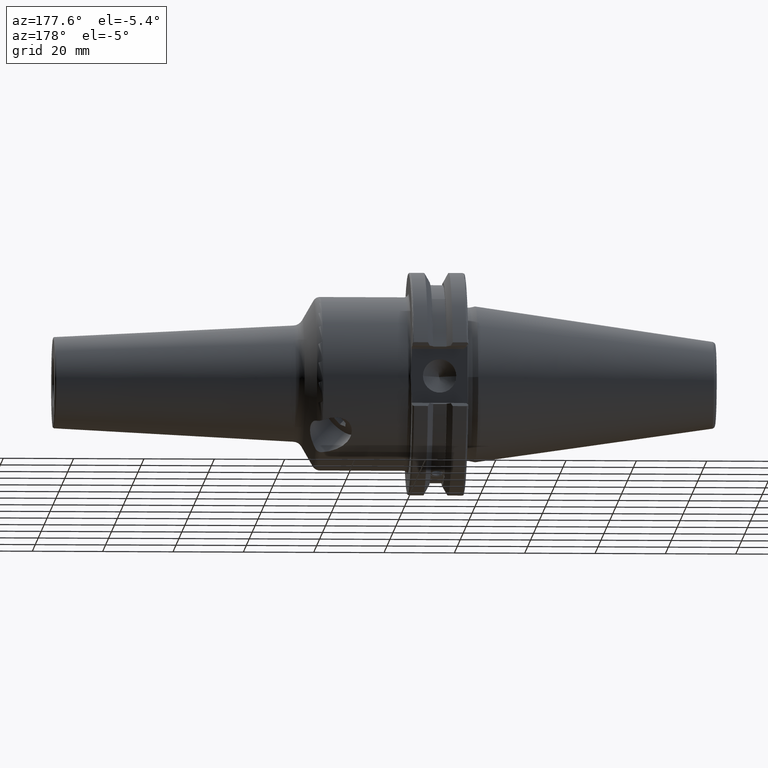
[diagram: clean part render]
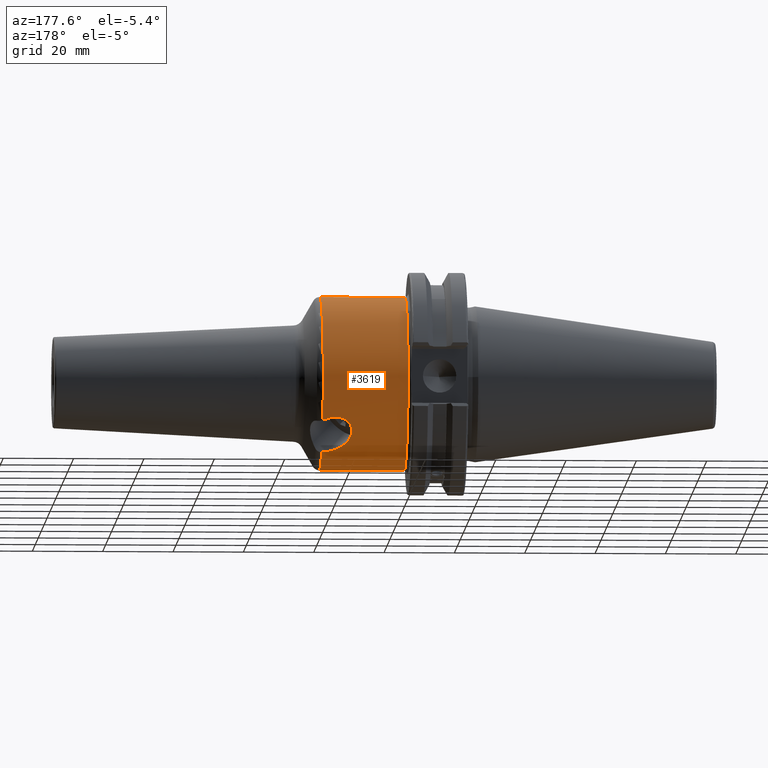
[diagram: same view with one face highlighted and labeled with its STEP entity id]
A machine part, auxiliary view. The second image highlights one B-rep face of the part: STEP entity #3619.
In plain terms, the highlighted cylindrical surface (partial cylindrical patch) has radius 24.75 mm, axis along (1, 0, 0).
Its self-contained STEP definition (entity closure, byte-faithful):
#1045=CARTESIAN_POINT('',(2.005E1,0.E0,0.E0));
#1046=DIRECTION('',(1.E0,0.E0,0.E0));
#1047=DIRECTION('',(0.E0,0.E0,-1.E0));
#1048=AXIS2_PLACEMENT_3D('',#1045,#1046,#1047);
#1086=CARTESIAN_POINT('',(4.417946898201E1,0.E0,0.E0));
#1087=DIRECTION('',(-1.E0,0.E0,0.E0));
#1088=DIRECTION('',(0.E0,0.E0,1.E0));
#1089=AXIS2_PLACEMENT_3D('',#1086,#1087,#1088);
#1091=CARTESIAN_POINT('',(4.417946898201E1,0.E0,0.E0));
#1092=DIRECTION('',(-1.E0,0.E0,0.E0));
#1093=DIRECTION('',(0.E0,5.424508092470E-1,-8.400875665949E-1));
#1094=AXIS2_PLACEMENT_3D('',#1091,#1092,#1093);
#1096=CARTESIAN_POINT('',(3.698513666478E1,1.693113792E1,-1.805267483599E1));
#1097=CARTESIAN_POINT('',(3.720500799337E1,1.666859742533E1,-1.829890479167E1));
#1098=CARTESIAN_POINT('',(3.770896985945E1,1.614102153859E1,-1.877253126914E1));
#1099=CARTESIAN_POINT('',(3.872397081886E1,1.533456454030E1,-1.943552895100E1));
#1100=CARTESIAN_POINT('',(3.993463320528E1,1.461567771361E1,-1.997899575352E1));
#1101=CARTESIAN_POINT('',(4.127902107478E1,1.403528378654E1,-2.038858803348E1));
#1102=CARTESIAN_POINT('',(4.272701449664E1,1.361972105072E1,-2.066669517822E1));
#1103=CARTESIAN_POINT('',(4.369167397795E1,1.347025550646E1,-2.076337002636E1));
#1104=CARTESIAN_POINT('',(4.417946898203E1,1.342565752886E1,-2.079216727322E1));
#1106=CARTESIAN_POINT('',(4.417946898201E1,2.144548779635E1,-1.235530465738E1));
#1107=CARTESIAN_POINT('',(4.376045678915E1,2.153031500476E1,-1.220806742502E1));
#1108=CARTESIAN_POINT('',(4.293826715865E1,2.166996520113E1,-1.195888100903E1));
#1109=CARTESIAN_POINT('',(4.175237909133E1,2.180097506036E1,-1.171715359089E1));
#1110=CARTESIAN_POINT('',(4.062412556940E1,2.185663778813E1,-1.161244730943E1));
#1111=CARTESIAN_POINT('',(3.959192887912E1,2.183603594699E1,-1.165134040699E1));
#1112=CARTESIAN_POINT('',(3.870926726927E1,2.174764382128E1,-1.181618199524E1));
#1113=CARTESIAN_POINT('',(3.792062383E1,2.159259409016E1,-1.209858420651E1));
#1114=CARTESIAN_POINT('',(3.718668684409E1,2.134266426884E1,-1.253686038605E1));
#1115=CARTESIAN_POINT('',(3.658637054829E1,2.098968356775E1,-1.312171597705E1));
#1116=CARTESIAN_POINT('',(3.617150482057E1,2.056285689615E1,-1.378261557476E1));
#1117=CARTESIAN_POINT('',(3.592631908459E1,2.007339414021E1,-1.448706745683E1));
#1118=CARTESIAN_POINT('',(3.583739607378E1,1.954357337149E1,-1.519487807285E1));
#1119=CARTESIAN_POINT('',(3.588984933204E1,1.896117818824E1,-1.591637794945E1));
#1120=CARTESIAN_POINT('',(3.608417149109E1,1.833630945885E1,-1.663288926152E1));
#1121=CARTESIAN_POINT('',(3.643060992804E1,1.766119770577E1,-1.734872792795E1));
#1122=CARTESIAN_POINT('',(3.677798623607E1,1.717848884280E1,-1.782069078783E1));
#1123=CARTESIAN_POINT('',(3.698513666478E1,1.693113792E1,-1.805267483599E1));
#1130=DIRECTION('',(-1.E0,5.234653422002E-12,0.E0));
#1131=VECTOR('',#1130,2.412946898201E1);
#1132=CARTESIAN_POINT('',(4.417946898201E1,-6.846774622605E-11,-2.475E1));
#1133=LINE('',#1132,#1131);
#1152=DIRECTION('',(-1.E0,-3.100386923773E-12,0.E0));
#1153=VECTOR('',#1152,2.412946898201E1);
#1154=CARTESIAN_POINT('',(4.417946898201E1,1.696824066867E-11,2.475E1));
#1155=LINE('',#1154,#1153);
#2391=CARTESIAN_POINT('',(2.005E1,0.E0,-2.475E1));
#2393=VERTEX_POINT('',#2391);
#2394=CARTESIAN_POINT('',(2.005E1,0.E0,2.475E1));
#2396=VERTEX_POINT('',#2394);
#2402=CARTESIAN_POINT('',(3.698513666478E1,1.693113792E1,-1.805267483599E1));
#2403=VERTEX_POINT('',#2402);
#2450=CARTESIAN_POINT('',(4.417946898201E1,0.E0,-2.475E1));
#2451=CARTESIAN_POINT('',(4.417946898201E1,0.E0,2.475E1));
#2452=VERTEX_POINT('',#2450);
#2453=VERTEX_POINT('',#2451);
#2458=CARTESIAN_POINT('',(4.417946898201E1,2.144548779635E1,-1.235530465738E1));
#2459=VERTEX_POINT('',#2458);
#2486=CARTESIAN_POINT('',(4.417946898201E1,1.342565752886E1,-2.079216727322E1));
#2487=VERTEX_POINT('',#2486);
#3599=CARTESIAN_POINT('',(1.40025E1,0.E0,0.E0));
#3600=DIRECTION('',(1.E0,0.E0,0.E0));
#3601=DIRECTION('',(0.E0,0.E0,1.E0));
#3602=AXIS2_PLACEMENT_3D('',#3599,#3600,#3601);
#3603=CYLINDRICAL_SURFACE('',#3602,2.475E1);
#3605=ORIENTED_EDGE('',*,*,#3604,.F.);
#3607=ORIENTED_EDGE('',*,*,#3606,.T.);
#3608=ORIENTED_EDGE('',*,*,#3584,.F.);
#3610=ORIENTED_EDGE('',*,*,#3609,.F.);
#3612=ORIENTED_EDGE('',*,*,#3611,.F.);
#3614=ORIENTED_EDGE('',*,*,#3613,.F.);
#3616=ORIENTED_EDGE('',*,*,#3615,.F.);
#3617=EDGE_LOOP('',(#3605,#3607,#3608,#3610,#3612,#3614,#3616));
#3618=FACE_OUTER_BOUND('',#3617,.F.);
#3619=ADVANCED_FACE('',(#3618),#3603,.T.);
#1049=CIRCLE('',#1048,2.475E1);
#1090=CIRCLE('',#1089,2.475E1);
#1095=CIRCLE('',#1094,2.475E1);
#1105=B_SPLINE_CURVE_WITH_KNOTS('',3,(#1096,#1097,#1098,#1099,#1100,#1101,#1102,
#1103,#1104),.UNSPECIFIED.,.F.,.F.,(4,1,1,1,1,1,4),(0.E0,1.666666666667E-1,
3.333333333333E-1,5.E-1,6.666666666667E-1,8.333333333333E-1,1.E0),
.UNSPECIFIED.);
#1124=B_SPLINE_CURVE_WITH_KNOTS('',3,(#1106,#1107,#1108,#1109,#1110,#1111,#1112,
#1113,#1114,#1115,#1116,#1117,#1118,#1119,#1120,#1121,#1122,#1123),
.UNSPECIFIED.,.F.,.F.,(4,1,1,1,1,1,1,1,1,1,1,1,1,1,1,4),(0.E0,6.666666666667E-2,
1.333333333333E-1,2.E-1,2.666666666667E-1,3.333333333333E-1,4.E-1,
4.666666666667E-1,5.333333333333E-1,6.E-1,6.666666666667E-1,7.333333333333E-1,
8.E-1,8.666666666667E-1,9.333333333333E-1,1.E0),.UNSPECIFIED.);
#3584=EDGE_CURVE('',#2393,#2396,#1049,.T.);
#3604=EDGE_CURVE('',#2453,#2459,#1090,.T.);
#3606=EDGE_CURVE('',#2453,#2396,#1155,.T.);
#3609=EDGE_CURVE('',#2452,#2393,#1133,.T.);
#3611=EDGE_CURVE('',#2487,#2452,#1095,.T.);
#3613=EDGE_CURVE('',#2403,#2487,#1105,.T.);
#3615=EDGE_CURVE('',#2459,#2403,#1124,.T.);